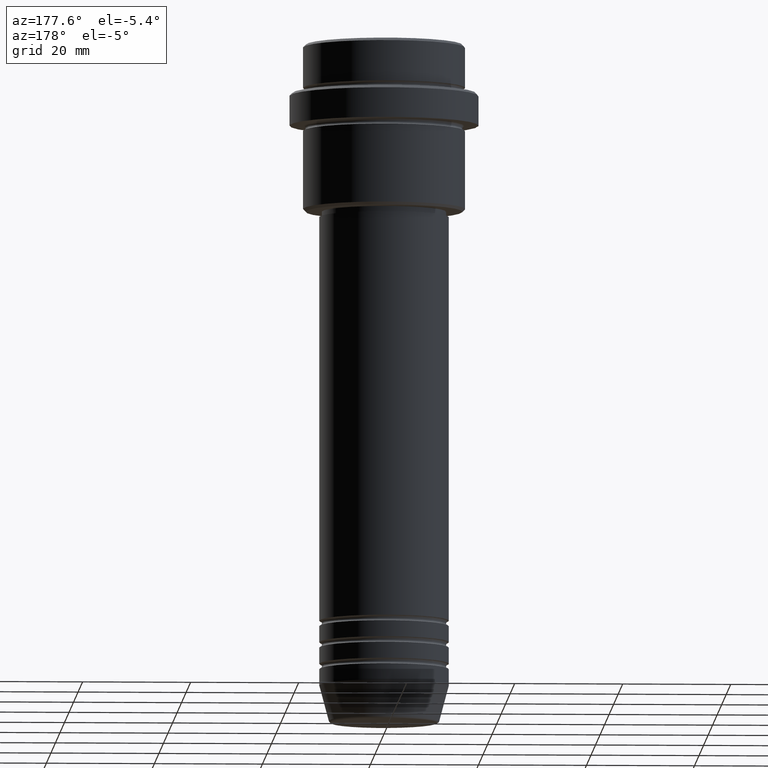
[diagram: clean part render]
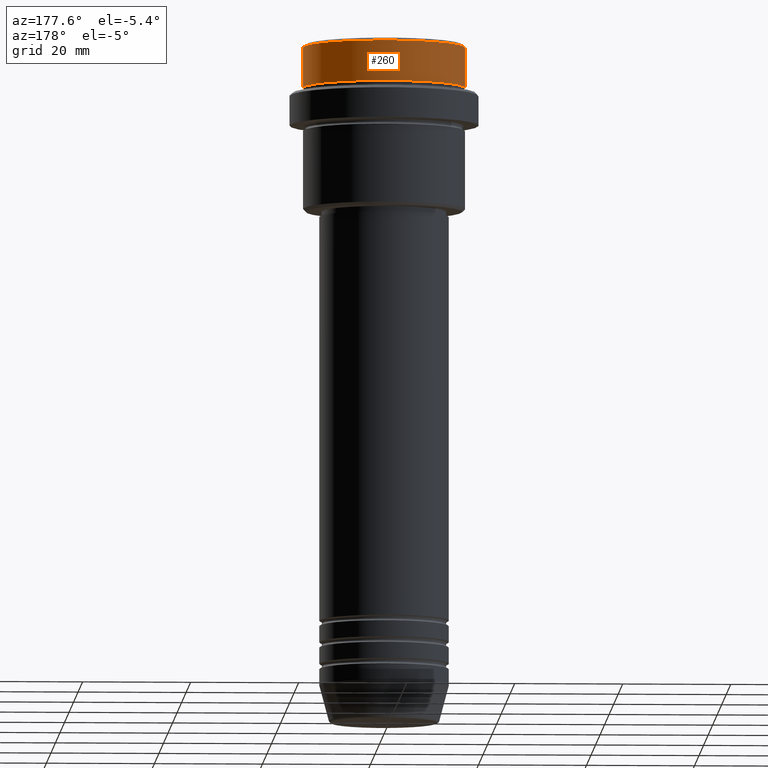
[diagram: same view with one face highlighted and labeled with its STEP entity id]
A machine part, auxiliary view. The second image highlights one B-rep face of the part: STEP entity #260.
In plain terms, the highlighted cylindrical surface (partial cylindrical patch) has radius 15 mm, axis along (-0, -0, 1).
Its self-contained STEP definition (entity closure, byte-faithful):
#3 = CARTESIAN_POINT ( 'NONE',  ( 0.000000000000000000, 0.000000000000000000, -7.999999999999998224 ) ) ;
#36 = AXIS2_PLACEMENT_3D ( 'NONE', #565, #455, #908 ) ;
#75 = ORIENTED_EDGE ( 'NONE', *, *, #1390, .T. ) ;
#102 = EDGE_LOOP ( 'NONE', ( #75, #603, #694, #807 ) ) ;
#114 = DIRECTION ( 'NONE',  ( 1.000000000000000000, 0.000000000000000000, 0.000000000000000000 ) ) ;
#185 = CIRCLE ( 'NONE', #360, 15.00000000000000000 ) ;
#192 = VERTEX_POINT ( 'NONE', #1395 ) ;
#230 = DIRECTION ( 'NONE',  ( -0.000000000000000000, -0.000000000000000000, 1.000000000000000000 ) ) ;
#260 = ADVANCED_FACE ( 'NONE', ( #783 ), #894, .T. ) ;
#333 = CARTESIAN_POINT ( 'NONE',  ( 0.000000000000000000, 0.000000000000000000, -0.4999999999999970024 ) ) ;
#354 = VECTOR ( 'NONE', #1087, 1000.000000000000000 ) ;
#360 = AXIS2_PLACEMENT_3D ( 'NONE', #3, #1184, #114 ) ;
#426 = CARTESIAN_POINT ( 'NONE',  ( 15.00000000000000000, 0.000000000000000000, 0.000000000000000000 ) ) ;
#440 = EDGE_CURVE ( 'NONE', #1259, #1144, #1396, .T. ) ;
#455 = DIRECTION ( 'NONE',  ( -0.000000000000000000, -0.000000000000000000, 1.000000000000000000 ) ) ;
#508 = VERTEX_POINT ( 'NONE', #592 ) ;
#509 = EDGE_CURVE ( 'NONE', #192, #1144, #889, .T. ) ;
#513 = CARTESIAN_POINT ( 'NONE',  ( 15.00000000000000000, 0.000000000000000000, -0.4999999999999970024 ) ) ;
#546 = VECTOR ( 'NONE', #230, 1000.000000000000000 ) ;
#565 = CARTESIAN_POINT ( 'NONE',  ( 0.000000000000000000, 0.000000000000000000, 0.000000000000000000 ) ) ;
#592 = CARTESIAN_POINT ( 'NONE',  ( -15.00000000000000000, 1.836970198721029589E-15, -7.999999999999998224 ) ) ;
#603 = ORIENTED_EDGE ( 'NONE', *, *, #1306, .T. ) ;
#617 = AXIS2_PLACEMENT_3D ( 'NONE', #333, #670, #786 ) ;
#670 = DIRECTION ( 'NONE',  ( 0.000000000000000000, 0.000000000000000000, -1.000000000000000000 ) ) ;
#694 = ORIENTED_EDGE ( 'NONE', *, *, #509, .T. ) ;
#783 = FACE_OUTER_BOUND ( 'NONE', #102, .T. ) ;
#786 = DIRECTION ( 'NONE',  ( 1.000000000000000000, 0.000000000000000000, 0.000000000000000000 ) ) ;
#807 = ORIENTED_EDGE ( 'NONE', *, *, #440, .F. ) ;
#808 = LINE ( 'NONE', #1207, #546 ) ;
#889 = CIRCLE ( 'NONE', #617, 15.00000000000000000 ) ;
#894 = CYLINDRICAL_SURFACE ( 'NONE', #36, 15.00000000000000000 ) ;
#908 = DIRECTION ( 'NONE',  ( 1.000000000000000000, 0.000000000000000000, 0.000000000000000000 ) ) ;
#1087 = DIRECTION ( 'NONE',  ( -0.000000000000000000, -0.000000000000000000, 1.000000000000000000 ) ) ;
#1144 = VERTEX_POINT ( 'NONE', #513 ) ;
#1170 = CARTESIAN_POINT ( 'NONE',  ( 15.00000000000000000, 0.000000000000000000, -7.999999999999998224 ) ) ;
#1184 = DIRECTION ( 'NONE',  ( -0.000000000000000000, -0.000000000000000000, 1.000000000000000000 ) ) ;
#1207 = CARTESIAN_POINT ( 'NONE',  ( -15.00000000000000000, 1.836970198721029589E-15, 0.000000000000000000 ) ) ;
#1259 = VERTEX_POINT ( 'NONE', #1170 ) ;
#1306 = EDGE_CURVE ( 'NONE', #508, #192, #808, .T. ) ;
#1390 = EDGE_CURVE ( 'NONE', #1259, #508, #185, .T. ) ;
#1395 = CARTESIAN_POINT ( 'NONE',  ( -15.00000000000000000, 1.836970198721029589E-15, -0.4999999999999970024 ) ) ;
#1396 = LINE ( 'NONE', #426, #354 ) ;